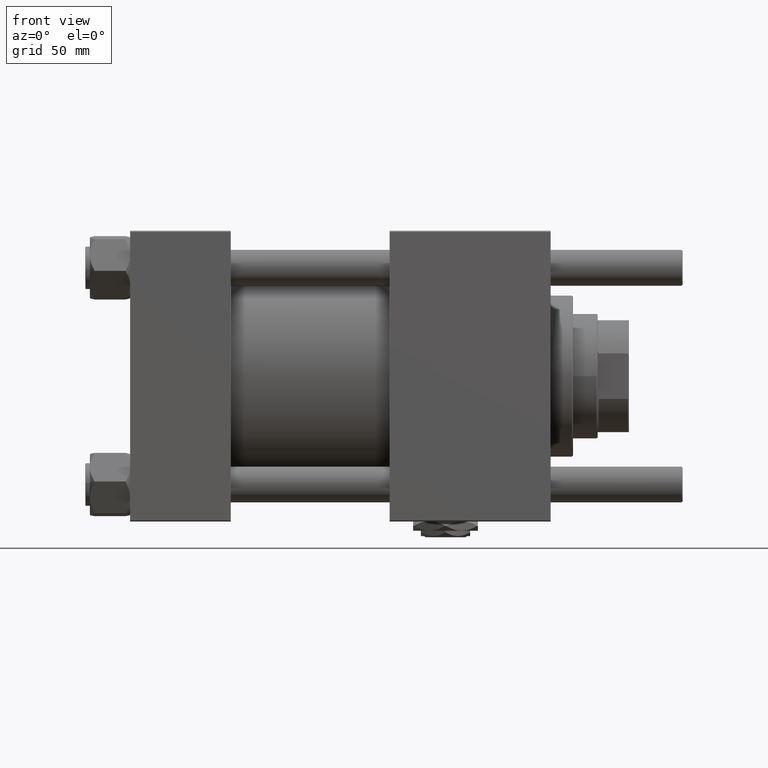
[diagram: clean part render]
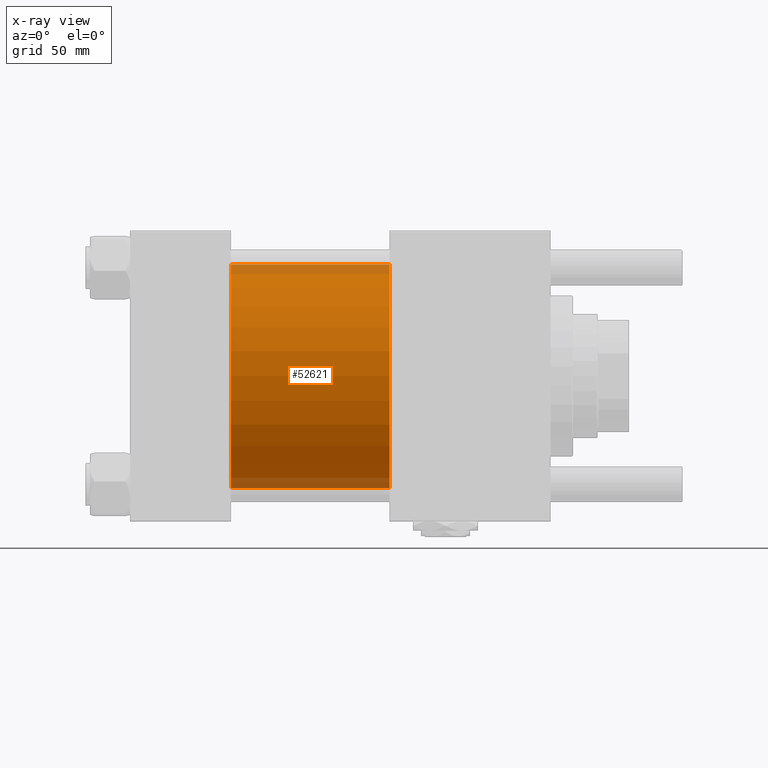
[diagram: x-ray — body ghosted, one internal face saturated and labeled with its STEP entity id]
A machine part, front view, then the same camera in x-ray: the body is ghosted and one INTERNAL B-rep face — a face not visible from any outside direction — is saturated and labeled: STEP entity #52621.
In plain terms, the highlighted cylindrical surface (partial cylindrical patch) has radius 50 mm, axis along (-1, -0, -0).
Its self-contained STEP definition (entity closure, byte-faithful):
#1881 = EDGE_CURVE ( 'NONE', #2554, #44842, #37299, .T. ) ;
#2554 = VERTEX_POINT ( 'NONE', #55588 ) ;
#3115 = CARTESIAN_POINT ( 'NONE',  ( 45.00000000000000000, 3.521148781771555838E-15, -50.00000000000000000 ) ) ;
#7576 = AXIS2_PLACEMENT_3D ( 'NONE', #54430, #31488, #12730 ) ;
#8966 = DIRECTION ( 'NONE',  ( 0.000000000000000000, 0.000000000000000000, -1.000000000000000000 ) ) ;
#9713 = CARTESIAN_POINT ( 'NONE',  ( 115.9999999999999858, 3.521148781771555838E-15, -50.00000000000000000 ) ) ;
#10169 = EDGE_CURVE ( 'NONE', #2554, #33429, #35225, .T. ) ;
#12087 = ORIENTED_EDGE ( 'NONE', *, *, #1881, .T. ) ;
#12730 = DIRECTION ( 'NONE',  ( 0.000000000000000000, 0.000000000000000000, 1.000000000000000000 ) ) ;
#13497 = VECTOR ( 'NONE', #32649, 1000.000000000000000 ) ;
#19227 = ORIENTED_EDGE ( 'NONE', *, *, #23073, .T. ) ;
#20490 = FACE_OUTER_BOUND ( 'NONE', #47954, .T. ) ;
#22413 = CARTESIAN_POINT ( 'NONE',  ( 115.9999999999999858, -2.602085213965210642E-15, 50.00000000000000000 ) ) ;
#23073 = EDGE_CURVE ( 'NONE', #44842, #26101, #37703, .T. ) ;
#26061 = DIRECTION ( 'NONE',  ( 1.000000000000000000, 0.000000000000000000, 0.000000000000000000 ) ) ;
#26101 = VERTEX_POINT ( 'NONE', #3115 ) ;
#30482 = CARTESIAN_POINT ( 'NONE',  ( 115.9999999999999858, 3.521148781771555838E-15, -50.00000000000000000 ) ) ;
#31488 = DIRECTION ( 'NONE',  ( -1.000000000000000000, -0.000000000000000000, -0.000000000000000000 ) ) ;
#32169 = DIRECTION ( 'NONE',  ( 1.000000000000000000, 0.000000000000000000, 0.000000000000000000 ) ) ;
#32553 = AXIS2_PLACEMENT_3D ( 'NONE', #57974, #26061, #8966 ) ;
#32649 = DIRECTION ( 'NONE',  ( -1.000000000000000000, -0.000000000000000000, -0.000000000000000000 ) ) ;
#33429 = VERTEX_POINT ( 'NONE', #54608 ) ;
#35225 = LINE ( 'NONE', #22413, #51886 ) ;
#36097 = DIRECTION ( 'NONE',  ( -1.000000000000000000, -0.000000000000000000, -0.000000000000000000 ) ) ;
#37299 = CIRCLE ( 'NONE', #32553, 50.00000000000000000 ) ;
#37703 = LINE ( 'NONE', #9713, #13497 ) ;
#41377 = AXIS2_PLACEMENT_3D ( 'NONE', #41396, #32169, #51229 ) ;
#41396 = CARTESIAN_POINT ( 'NONE',  ( 45.00000000000000000, -2.602085213965210642E-15, 0.000000000000000000 ) ) ;
#44842 = VERTEX_POINT ( 'NONE', #30482 ) ;
#46136 = CIRCLE ( 'NONE', #41377, 50.00000000000000000 ) ;
#47954 = EDGE_LOOP ( 'NONE', ( #12087, #19227, #58662, #56755 ) ) ;
#51229 = DIRECTION ( 'NONE',  ( 0.000000000000000000, 0.000000000000000000, -1.000000000000000000 ) ) ;
#51886 = VECTOR ( 'NONE', #36097, 1000.000000000000000 ) ;
#52621 = ADVANCED_FACE ( 'NONE', ( #20490 ), #54151, .F. ) ;
#54151 = CYLINDRICAL_SURFACE ( 'NONE', #7576, 50.00000000000000000 ) ;
#54430 = CARTESIAN_POINT ( 'NONE',  ( 115.9999999999999858, -2.602085213965210642E-15, 0.000000000000000000 ) ) ;
#54608 = CARTESIAN_POINT ( 'NONE',  ( 45.00000000000000000, -2.602085213965210642E-15, 50.00000000000000000 ) ) ;
#55588 = CARTESIAN_POINT ( 'NONE',  ( 115.9999999999999858, -2.602085213965210642E-15, 50.00000000000000000 ) ) ;
#56193 = EDGE_CURVE ( 'NONE', #33429, #26101, #46136, .T. ) ;
#56755 = ORIENTED_EDGE ( 'NONE', *, *, #10169, .F. ) ;
#57974 = CARTESIAN_POINT ( 'NONE',  ( 115.9999999999999858, -2.602085213965210642E-15, 0.000000000000000000 ) ) ;
#58662 = ORIENTED_EDGE ( 'NONE', *, *, #56193, .F. ) ;